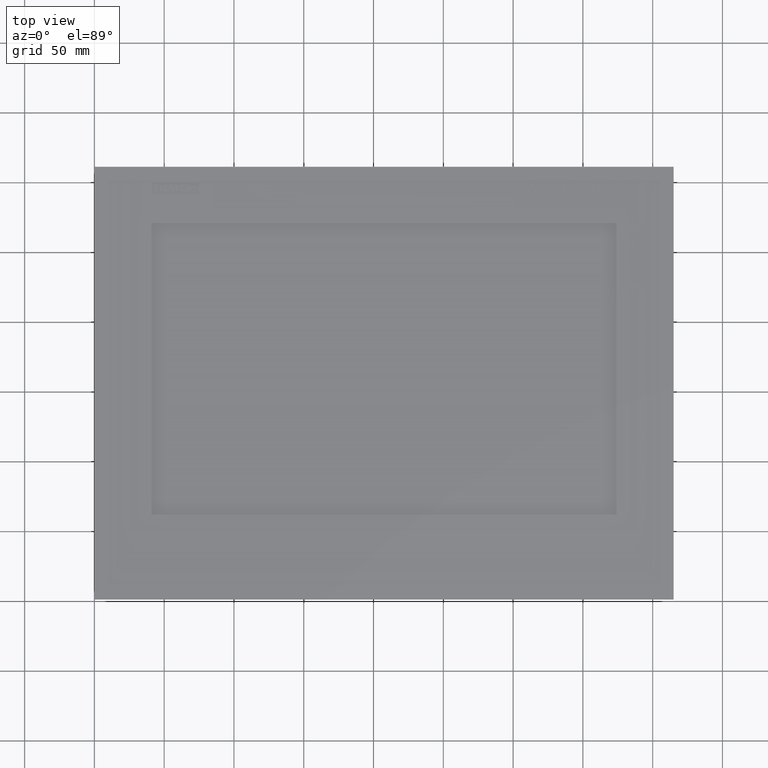
[diagram: clean part render]
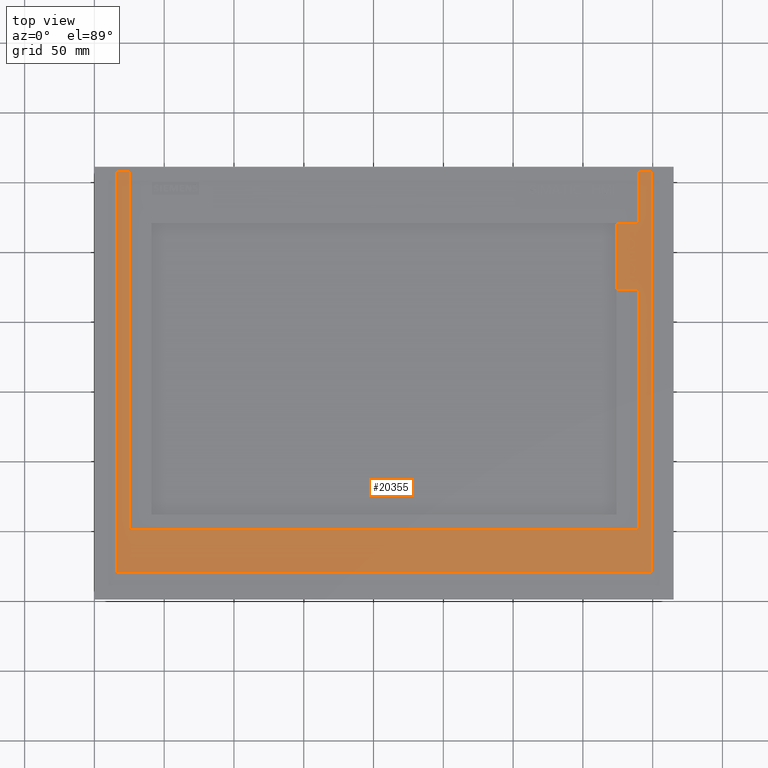
[diagram: same view with one face highlighted and labeled with its STEP entity id]
A machine part, top view. The second image highlights one B-rep face of the part: STEP entity #20355.
In plain terms, the highlighted planar face has unit normal (0, 0, 1).
Its self-contained STEP definition (entity closure, byte-faithful):
#4327=LINE('',#72386,#9822);
#4328=LINE('',#72389,#9823);
#4329=LINE('',#72391,#9824);
#4330=LINE('',#72393,#9825);
#4331=LINE('',#72394,#9826);
#4332=LINE('',#72397,#9827);
#4333=LINE('',#72399,#9828);
#4334=LINE('',#72401,#9829);
#4335=LINE('',#72403,#9830);
#4336=LINE('',#72405,#9831);
#4337=LINE('',#72407,#9832);
#4338=LINE('',#72409,#9833);
#9822=VECTOR('',#59415,1.);
#9823=VECTOR('',#59416,1.);
#9824=VECTOR('',#59417,1.);
#9825=VECTOR('',#59418,1.);
#9826=VECTOR('',#59419,1.);
#9827=VECTOR('',#59420,1.);
#9828=VECTOR('',#59421,1.);
#9829=VECTOR('',#59422,1.);
#9830=VECTOR('',#59423,1.);
#9831=VECTOR('',#59424,1.);
#9832=VECTOR('',#59425,1.);
#9833=VECTOR('',#59426,1.);
#17846=PLANE('',#54679);
#20355=ADVANCED_FACE('',(#23404,#23405),#17846,.T.);
#23404=FACE_BOUND('',#24421,.T.);
#23405=FACE_BOUND('',#24422,.T.);
#24421=EDGE_LOOP('',(#29123,#29124,#29125,#29126));
#24422=EDGE_LOOP('',(#29127,#29128,#29129,#29130,#29131,#29132,#29133,#29134));
#29123=ORIENTED_EDGE('',*,*,#47072,.T.);
#29124=ORIENTED_EDGE('',*,*,#47073,.T.);
#29125=ORIENTED_EDGE('',*,*,#47074,.T.);
#29126=ORIENTED_EDGE('',*,*,#47075,.T.);
#29127=ORIENTED_EDGE('',*,*,#47076,.T.);
#29128=ORIENTED_EDGE('',*,*,#47077,.T.);
#29129=ORIENTED_EDGE('',*,*,#47078,.T.);
#29130=ORIENTED_EDGE('',*,*,#47079,.T.);
#29131=ORIENTED_EDGE('',*,*,#47080,.T.);
#29132=ORIENTED_EDGE('',*,*,#47081,.T.);
#29133=ORIENTED_EDGE('',*,*,#47082,.T.);
#29134=ORIENTED_EDGE('',*,*,#47083,.T.);
#42035=VERTEX_POINT('',#72387);
#42036=VERTEX_POINT('',#72388);
#42037=VERTEX_POINT('',#72390);
#42038=VERTEX_POINT('',#72392);
#42039=VERTEX_POINT('',#72395);
#42040=VERTEX_POINT('',#72396);
#42041=VERTEX_POINT('',#72398);
#42042=VERTEX_POINT('',#72400);
#42043=VERTEX_POINT('',#72402);
#42044=VERTEX_POINT('',#72404);
#42045=VERTEX_POINT('',#72406);
#42046=VERTEX_POINT('',#72408);
#47072=EDGE_CURVE('',#42035,#42036,#4327,.T.);
#47073=EDGE_CURVE('',#42036,#42037,#4328,.T.);
#47074=EDGE_CURVE('',#42037,#42038,#4329,.T.);
#47075=EDGE_CURVE('',#42038,#42035,#4330,.T.);
#47076=EDGE_CURVE('',#42039,#42040,#4331,.T.);
#47077=EDGE_CURVE('',#42040,#42041,#4332,.T.);
#47078=EDGE_CURVE('',#42041,#42042,#4333,.T.);
#47079=EDGE_CURVE('',#42042,#42043,#4334,.T.);
#47080=EDGE_CURVE('',#42043,#42044,#4335,.T.);
#47081=EDGE_CURVE('',#42044,#42045,#4336,.T.);
#47082=EDGE_CURVE('',#42045,#42046,#4337,.T.);
#47083=EDGE_CURVE('',#42046,#42039,#4338,.T.);
#54679=AXIS2_PLACEMENT_3D('',#72410,#59427,#59428);
#59415=DIRECTION('',(5.56420760868606E-007,-0.999999999999845,0.));
#59416=DIRECTION('',(1.,0.,0.));
#59417=DIRECTION('',(5.51105020797136E-007,0.999999999999848,0.));
#59418=DIRECTION('',(-1.,2.31497787221593E-015,0.));
#59419=DIRECTION('',(-1.,3.50588600191814E-015,0.));
#59420=DIRECTION('',(1.56524774264698E-008,1.,0.));
#59421=DIRECTION('',(1.,0.,0.));
#59422=DIRECTION('',(1.56710740260557E-008,-1.,0.));
#59423=DIRECTION('',(-1.,0.,0.));
#59424=DIRECTION('',(1.56524779663981E-008,1.,0.));
#59425=DIRECTION('',(1.,0.,0.));
#59426=DIRECTION('',(0.,1.,0.));
#59427=DIRECTION('',(0.,0.,1.));
#59428=DIRECTION('',(1.,0.,0.));
#72386=CARTESIAN_POINT('',(-191.833026475095,135.7328817874,3.325));
#72387=CARTESIAN_POINT('',(-191.833026475095,135.7328817874,3.325));
#72388=CARTESIAN_POINT('',(-191.832866808025,-151.2209524617,3.325));
#72389=CARTESIAN_POINT('',(-191.832866808025,-151.2209524617,3.325));
#72390=CARTESIAN_POINT('',(191.832866951098,-151.2209524617,3.325));
#72391=CARTESIAN_POINT('',(191.832866951098,-151.2209524617,3.325));
#72392=CARTESIAN_POINT('',(191.833025092796,135.732881787399,3.325));
#72393=CARTESIAN_POINT('',(191.833025092796,135.732881787399,3.325));
#72394=CARTESIAN_POINT('',(-166.6,-66.8595147826992,3.325));
#72395=CARTESIAN_POINT('',(-166.6,-66.8595147826992,3.325));
#72396=CARTESIAN_POINT('',(-182.433701153114,-66.8595147826991,3.325));
#72397=CARTESIAN_POINT('',(-182.433701153114,-66.8595147826991,3.325));
#72398=CARTESIAN_POINT('',(-182.433698457864,105.3337020522,3.325));
#72399=CARTESIAN_POINT('',(-182.433698457864,105.3337020522,3.325));
#72400=CARTESIAN_POINT('',(182.433698453618,105.3337020522,3.325));
#72401=CARTESIAN_POINT('',(182.433698453618,105.3337020522,3.325));
#72402=CARTESIAN_POINT('',(182.433702473935,-151.2101106157,3.325));
#72403=CARTESIAN_POINT('',(182.433702473935,-151.2101106157,3.325));
#72404=CARTESIAN_POINT('',(-182.43370247341,-151.2101106157,3.325));
#72405=CARTESIAN_POINT('',(-182.43370247341,-151.2101106157,3.325));
#72406=CARTESIAN_POINT('',(-182.433701898806,-114.5,3.325));
#72407=CARTESIAN_POINT('',(-182.433701898806,-114.5,3.325));
#72408=CARTESIAN_POINT('',(-166.6,-114.5,3.325));
#72409=CARTESIAN_POINT('',(-166.6,-114.5,3.325));
#72410=CARTESIAN_POINT('',(-191.832866808025,-151.2209524617,3.325));